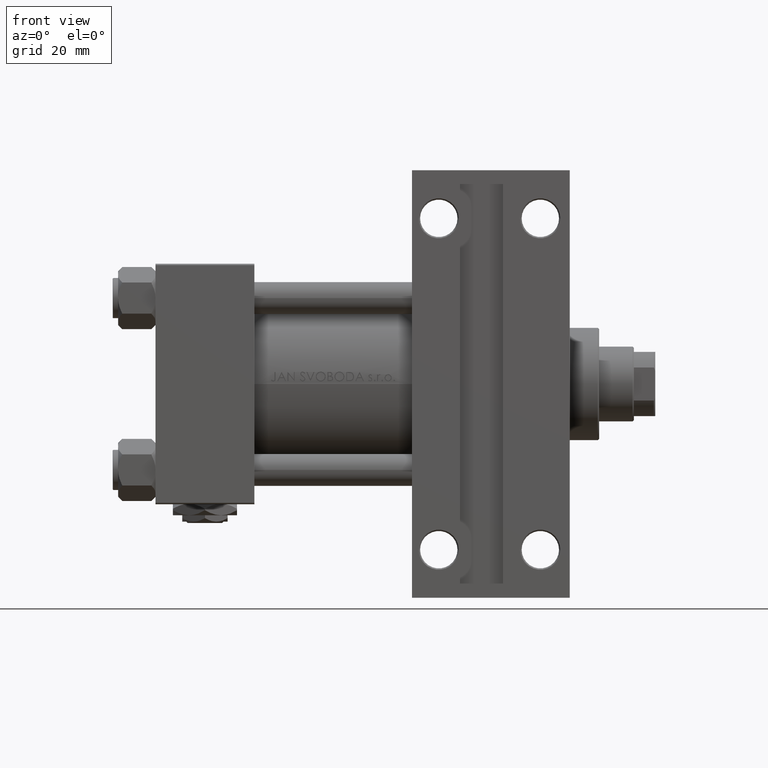
[diagram: clean part render]
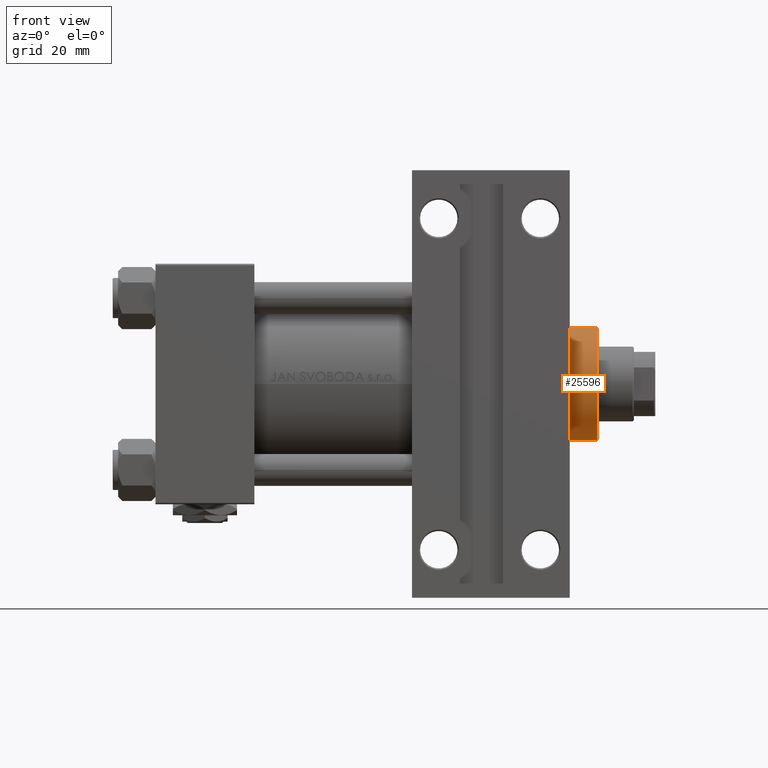
[diagram: same view with one face highlighted and labeled with its STEP entity id]
A machine part, front view. The second image highlights one B-rep face of the part: STEP entity #25596.
In plain terms, the highlighted cylindrical surface (partial cylindrical patch) has radius 21 mm, axis along (-1, 0, 0).
Its self-contained STEP definition (entity closure, byte-faithful):
#892 = VECTOR ( 'NONE', #12553, 1000.000000000000000 ) ;
#1417 = ORIENTED_EDGE ( 'NONE', *, *, #12318, .T. ) ;
#4388 = ORIENTED_EDGE ( 'NONE', *, *, #41774, .T. ) ;
#5049 = CIRCLE ( 'NONE', #46797, 21.00000000000000000 ) ;
#5425 = EDGE_LOOP ( 'NONE', ( #28377, #1417, #4388, #11155 ) ) ;
#6865 = LINE ( 'NONE', #42306, #41198 ) ;
#7286 = CARTESIAN_POINT ( 'NONE',  ( 0.000000000000000000, 0.000000000000000000, 39.69999999999999574 ) ) ;
#7620 = DIRECTION ( 'NONE',  ( -0.000000000000000000, -0.000000000000000000, -1.000000000000000000 ) ) ;
#8292 = DIRECTION ( 'NONE',  ( -0.000000000000000000, -0.000000000000000000, -1.000000000000000000 ) ) ;
#11155 = ORIENTED_EDGE ( 'NONE', *, *, #39295, .F. ) ;
#11293 = DIRECTION ( 'NONE',  ( -1.000000000000000000, 0.000000000000000000, 0.000000000000000000 ) ) ;
#12318 = EDGE_CURVE ( 'NONE', #46929, #36548, #13047, .T. ) ;
#12553 = DIRECTION ( 'NONE',  ( -0.000000000000000000, -0.000000000000000000, -1.000000000000000000 ) ) ;
#13024 = VERTEX_POINT ( 'NONE', #33163 ) ;
#13047 = LINE ( 'NONE', #47977, #892 ) ;
#15234 = AXIS2_PLACEMENT_3D ( 'NONE', #7286, #8292, #11293 ) ;
#15820 = CYLINDRICAL_SURFACE ( 'NONE', #15234, 21.00000000000000000 ) ;
#16957 = DIRECTION ( 'NONE',  ( 0.000000000000000000, 0.000000000000000000, -1.000000000000000000 ) ) ;
#18767 = DIRECTION ( 'NONE',  ( 0.000000000000000000, 0.000000000000000000, 1.000000000000000000 ) ) ;
#20477 = DIRECTION ( 'NONE',  ( 1.000000000000000000, 0.000000000000000000, 0.000000000000000000 ) ) ;
#22876 = FACE_OUTER_BOUND ( 'NONE', #5425, .T. ) ;
#23038 = CARTESIAN_POINT ( 'NONE',  ( 0.000000000000000000, 0.000000000000000000, 28.69999999999999929 ) ) ;
#25596 = ADVANCED_FACE ( 'NONE', ( #22876 ), #15820, .T. ) ;
#28377 = ORIENTED_EDGE ( 'NONE', *, *, #34866, .T. ) ;
#32880 = CARTESIAN_POINT ( 'NONE',  ( 21.00000000000000000, 2.571758278209441661E-15, 28.69999999999999929 ) ) ;
#33163 = CARTESIAN_POINT ( 'NONE',  ( -21.00000000000000000, 0.000000000000000000, 28.69999999999999929 ) ) ;
#34866 = EDGE_CURVE ( 'NONE', #36833, #46929, #5049, .T. ) ;
#35819 = CARTESIAN_POINT ( 'NONE',  ( 21.00000000000000000, 2.571758278209441661E-15, 39.19999999999999574 ) ) ;
#36548 = VERTEX_POINT ( 'NONE', #32880 ) ;
#36833 = VERTEX_POINT ( 'NONE', #42355 ) ;
#39295 = EDGE_CURVE ( 'NONE', #36833, #13024, #6865, .T. ) ;
#41198 = VECTOR ( 'NONE', #7620, 1000.000000000000000 ) ;
#41774 = EDGE_CURVE ( 'NONE', #36548, #13024, #42894, .T. ) ;
#42306 = CARTESIAN_POINT ( 'NONE',  ( -21.00000000000000000, 0.000000000000000000, 39.69999999999999574 ) ) ;
#42355 = CARTESIAN_POINT ( 'NONE',  ( -21.00000000000000000, 0.000000000000000000, 39.19999999999999574 ) ) ;
#42396 = DIRECTION ( 'NONE',  ( 1.000000000000000000, 0.000000000000000000, 0.000000000000000000 ) ) ;
#42894 = CIRCLE ( 'NONE', #49308, 21.00000000000000000 ) ;
#44095 = CARTESIAN_POINT ( 'NONE',  ( 0.000000000000000000, 0.000000000000000000, 39.19999999999999574 ) ) ;
#46797 = AXIS2_PLACEMENT_3D ( 'NONE', #44095, #16957, #20477 ) ;
#46929 = VERTEX_POINT ( 'NONE', #35819 ) ;
#47977 = CARTESIAN_POINT ( 'NONE',  ( 21.00000000000000000, 2.571758278209441661E-15, 39.69999999999999574 ) ) ;
#49308 = AXIS2_PLACEMENT_3D ( 'NONE', #23038, #18767, #42396 ) ;